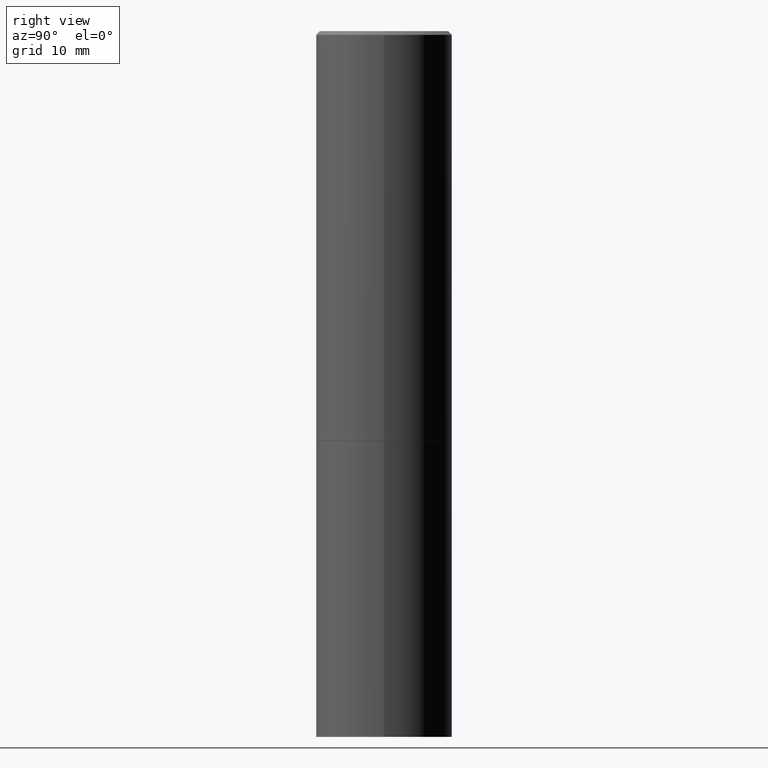
[diagram: clean part render]
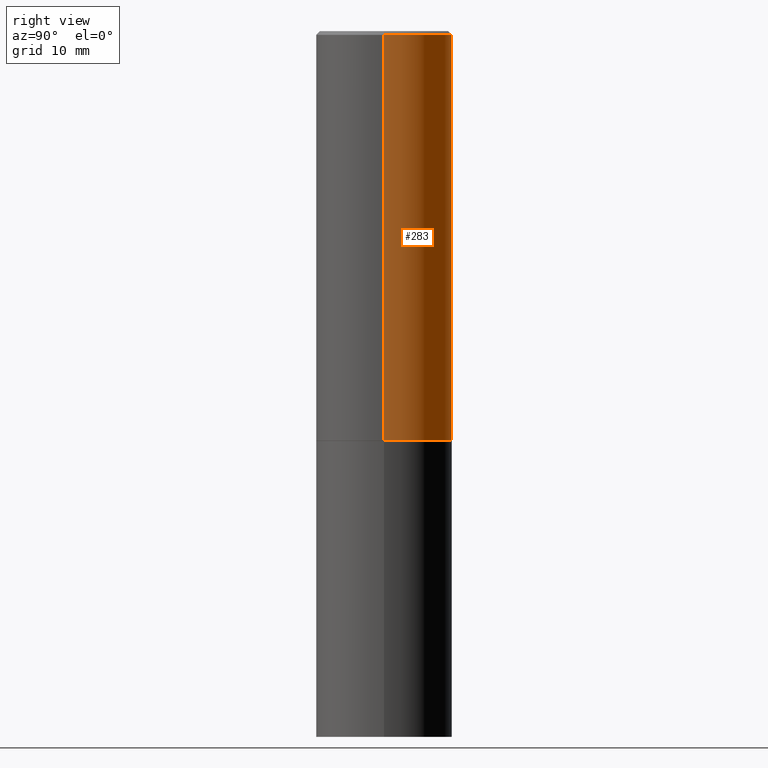
[diagram: same view with one face highlighted and labeled with its STEP entity id]
A machine part, right view. The second image highlights one B-rep face of the part: STEP entity #283.
In plain terms, the highlighted cylindrical surface (partial cylindrical patch) has radius 9.525 mm, axis along (-0, 0, 1).
Its self-contained STEP definition (entity closure, byte-faithful):
#6 = VECTOR ( 'NONE', #130, 39.37007874015748143 ) ;
#16 = EDGE_CURVE ( 'NONE', #317, #186, #321, .T. ) ;
#26 = DIRECTION ( 'NONE',  ( -2.445468806185136877E-29, 3.491481338843145188E-15, 1.000000000000000000 ) ) ;
#27 = CARTESIAN_POINT ( 'NONE',  ( -0.3749999999999997780, 2.548781377355484746E-15, -0.02000000000000008715 ) ) ;
#36 = DIRECTION ( 'NONE',  ( 1.000000000000000000, -6.982962677686265922E-15, 0.000000000000000000 ) ) ;
#56 = CARTESIAN_POINT ( 'NONE',  ( 5.499859345110371740E-29, -7.852341531058233864E-15, -2.249000000000000110 ) ) ;
#69 = CYLINDRICAL_SURFACE ( 'NONE', #210, 0.3749999999999998890 ) ;
#77 = CARTESIAN_POINT ( 'NONE',  ( 0.3750000000000000555, -1.047095253519058546E-14, -2.249000000000000110 ) ) ;
#86 = ORIENTED_EDGE ( 'NONE', *, *, #151, .F. ) ;
#100 = DIRECTION ( 'NONE',  ( -2.445468806185136597E-29, 3.491481338843145583E-15, 1.000000000000000000 ) ) ;
#103 = EDGE_CURVE ( 'NONE', #156, #317, #362, .T. ) ;
#105 = FACE_OUTER_BOUND ( 'NONE', #288, .T. ) ;
#126 = AXIS2_PLACEMENT_3D ( 'NONE', #56, #190, #134 ) ;
#128 = DIRECTION ( 'NONE',  ( -2.445468806185136597E-29, 3.491481338843145583E-15, 1.000000000000000000 ) ) ;
#130 = DIRECTION ( 'NONE',  ( -2.445468806185136877E-29, 3.491481338843145188E-15, 1.000000000000000000 ) ) ;
#134 = DIRECTION ( 'NONE',  ( 1.000000000000000000, -6.982962677686266711E-15, 0.000000000000000000 ) ) ;
#148 = CARTESIAN_POINT ( 'NONE',  ( -0.3749999999999998890, 2.664535259100374908E-15, -1.844600658845589038E-29 ) ) ;
#151 = EDGE_CURVE ( 'NONE', #156, #233, #275, .T. ) ;
#156 = VERTEX_POINT ( 'NONE', #77 ) ;
#160 = CARTESIAN_POINT ( 'NONE',  ( 0.3749999999999998890, -2.618611004132349228E-15, 1.828566290923475362E-29 ) ) ;
#176 = CIRCLE ( 'NONE', #256, 0.3749999999999997780 ) ;
#179 = CARTESIAN_POINT ( 'NONE',  ( 0.000000000000000000, 0.000000000000000000, 0.000000000000000000 ) ) ;
#186 = VERTEX_POINT ( 'NONE', #27 ) ;
#190 = DIRECTION ( 'NONE',  ( -2.445468806185136597E-29, 3.491481338843145583E-15, 1.000000000000000000 ) ) ;
#198 = VECTOR ( 'NONE', #26, 39.37007874015748143 ) ;
#210 = AXIS2_PLACEMENT_3D ( 'NONE', #179, #128, #238 ) ;
#226 = ORIENTED_EDGE ( 'NONE', *, *, #103, .T. ) ;
#233 = VERTEX_POINT ( 'NONE', #327 ) ;
#238 = DIRECTION ( 'NONE',  ( 1.000000000000000000, -6.982962677686266711E-15, 4.876176775795935793E-29 ) ) ;
#244 = CARTESIAN_POINT ( 'NONE',  ( -0.3750000000000000555, -1.296550319817170517E-15, -2.249000000000000110 ) ) ;
#256 = AXIS2_PLACEMENT_3D ( 'NONE', #343, #100, #36 ) ;
#263 = ORIENTED_EDGE ( 'NONE', *, *, #16, .T. ) ;
#275 = LINE ( 'NONE', #160, #198 ) ;
#283 = ADVANCED_FACE ( 'NONE', ( #105 ), #69, .T. ) ;
#288 = EDGE_LOOP ( 'NONE', ( #226, #263, #347, #86 ) ) ;
#317 = VERTEX_POINT ( 'NONE', #244 ) ;
#319 = EDGE_CURVE ( 'NONE', #233, #186, #176, .T. ) ;
#321 = LINE ( 'NONE', #148, #6 ) ;
#327 = CARTESIAN_POINT ( 'NONE',  ( 0.3749999999999997780, -2.642516375941186056E-15, -0.02000000000000008715 ) ) ;
#343 = CARTESIAN_POINT ( 'NONE',  ( 4.890937612370294178E-31, -6.982962677686321191E-17, -0.02000000000000008715 ) ) ;
#347 = ORIENTED_EDGE ( 'NONE', *, *, #319, .F. ) ;
#362 = CIRCLE ( 'NONE', #126, 0.3750000000000000555 ) ;